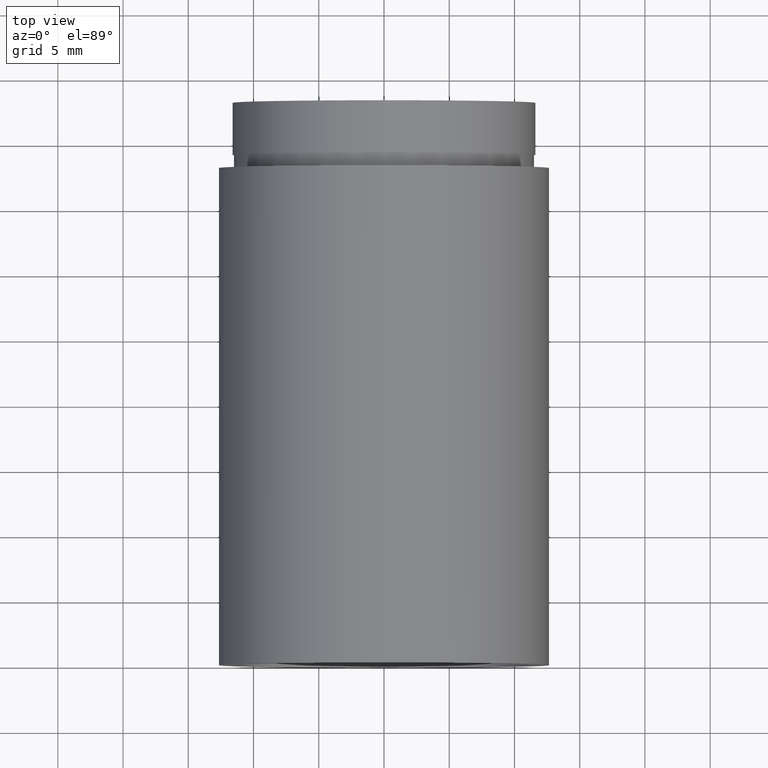
[diagram: clean part render]
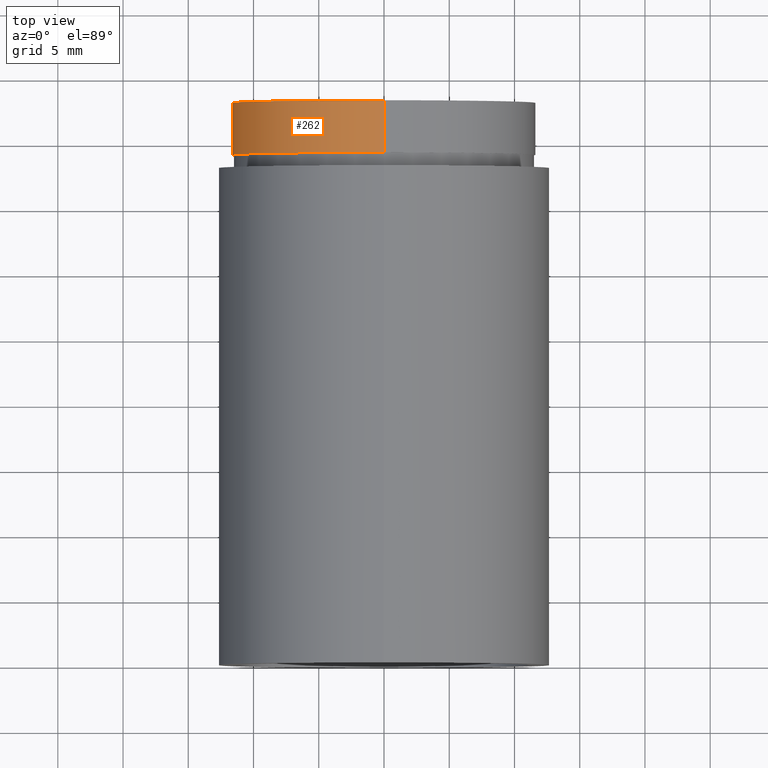
[diagram: same view with one face highlighted and labeled with its STEP entity id]
A machine part, top view. The second image highlights one B-rep face of the part: STEP entity #262.
In plain terms, the highlighted cylindrical surface (partial cylindrical patch) has radius 11.6 mm, axis along (-0, 1, -0).
Its self-contained STEP definition (entity closure, byte-faithful):
#51 = AXIS2_PLACEMENT_3D ( 'NONE', #275, #503, #456 ) ;
#66 = EDGE_CURVE ( 'NONE', #185, #621, #198, .T. ) ;
#87 = DIRECTION ( 'NONE',  ( -0.0000000000000000000, 1.000000000000000000, -0.0000000000000000000 ) ) ;
#106 = ORIENTED_EDGE ( 'NONE', *, *, #525, .F. ) ;
#107 = DIRECTION ( 'NONE',  ( 0.0000000000000000000, 0.0000000000000000000, 1.000000000000000000 ) ) ;
#134 = EDGE_CURVE ( 'NONE', #299, #449, #315, .T. ) ;
#146 = FACE_OUTER_BOUND ( 'NONE', #370, .T. ) ;
#169 = CARTESIAN_POINT ( 'NONE',  ( 0.0000000000000000000, 161.3761669434274500, 11.60000000000001400 ) ) ;
#175 = EDGE_CURVE ( 'NONE', #299, #185, #482, .T. ) ;
#182 = CYLINDRICAL_SURFACE ( 'NONE', #481, 11.60000000000001400 ) ;
#185 = VERTEX_POINT ( 'NONE', #578 ) ;
#198 = LINE ( 'NONE', #169, #594 ) ;
#231 = ORIENTED_EDGE ( 'NONE', *, *, #134, .F. ) ;
#245 = DIRECTION ( 'NONE',  ( -0.0000000000000000000, 1.000000000000000000, -0.0000000000000000000 ) ) ;
#262 = ADVANCED_FACE ( 'NONE', ( #146 ), #182, .T. ) ;
#275 = CARTESIAN_POINT ( 'NONE',  ( 0.0000000000000000000, 43.10000000000000100, 0.0000000000000000000 ) ) ;
#299 = VERTEX_POINT ( 'NONE', #394 ) ;
#315 = LINE ( 'NONE', #334, #530 ) ;
#334 = CARTESIAN_POINT ( 'NONE',  ( 1.420590287010931300E-015, 161.3761669434274500, -11.60000000000001400 ) ) ;
#340 = ORIENTED_EDGE ( 'NONE', *, *, #175, .T. ) ;
#341 = ORIENTED_EDGE ( 'NONE', *, *, #66, .T. ) ;
#370 = EDGE_LOOP ( 'NONE', ( #231, #340, #341, #106 ) ) ;
#389 = DIRECTION ( 'NONE',  ( 0.0000000000000000000, 0.0000000000000000000, 1.000000000000000000 ) ) ;
#390 = CARTESIAN_POINT ( 'NONE',  ( 0.0000000000000000000, 39.09999999999999400, 0.0000000000000000000 ) ) ;
#394 = CARTESIAN_POINT ( 'NONE',  ( 1.420590287010931300E-015, 39.09999999999999400, -11.60000000000001400 ) ) ;
#398 = CARTESIAN_POINT ( 'NONE',  ( 1.420590287010931300E-015, 43.10000000000000100, -11.60000000000001400 ) ) ;
#442 = CARTESIAN_POINT ( 'NONE',  ( 0.0000000000000000000, 161.3761669434274500, 0.0000000000000000000 ) ) ;
#449 = VERTEX_POINT ( 'NONE', #398 ) ;
#456 = DIRECTION ( 'NONE',  ( 0.0000000000000000000, 0.0000000000000000000, 1.000000000000000000 ) ) ;
#462 = CIRCLE ( 'NONE', #51, 11.60000000000001400 ) ;
#481 = AXIS2_PLACEMENT_3D ( 'NONE', #442, #245, #389 ) ;
#482 = CIRCLE ( 'NONE', #529, 11.60000000000001400 ) ;
#487 = DIRECTION ( 'NONE',  ( -0.0000000000000000000, 1.000000000000000000, -0.0000000000000000000 ) ) ;
#503 = DIRECTION ( 'NONE',  ( -0.0000000000000000000, 1.000000000000000000, -0.0000000000000000000 ) ) ;
#525 = EDGE_CURVE ( 'NONE', #449, #621, #462, .T. ) ;
#529 = AXIS2_PLACEMENT_3D ( 'NONE', #390, #487, #107 ) ;
#530 = VECTOR ( 'NONE', #87, 1000.000000000000000 ) ;
#551 = DIRECTION ( 'NONE',  ( -0.0000000000000000000, 1.000000000000000000, -0.0000000000000000000 ) ) ;
#553 = CARTESIAN_POINT ( 'NONE',  ( 0.0000000000000000000, 43.10000000000000100, 11.60000000000001400 ) ) ;
#578 = CARTESIAN_POINT ( 'NONE',  ( 0.0000000000000000000, 39.09999999999999400, 11.60000000000001400 ) ) ;
#594 = VECTOR ( 'NONE', #551, 1000.000000000000000 ) ;
#621 = VERTEX_POINT ( 'NONE', #553 ) ;